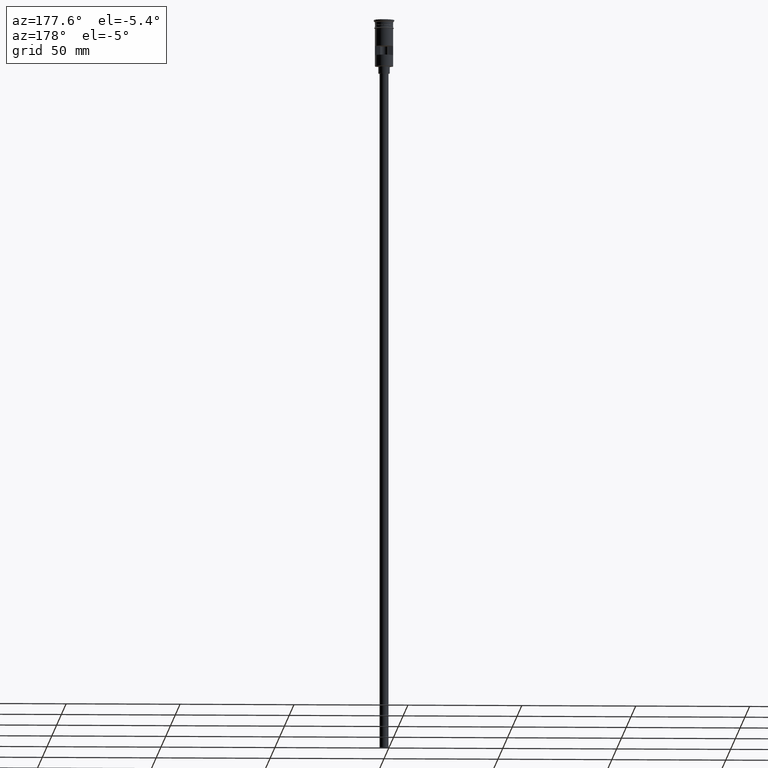
[diagram: clean part render]
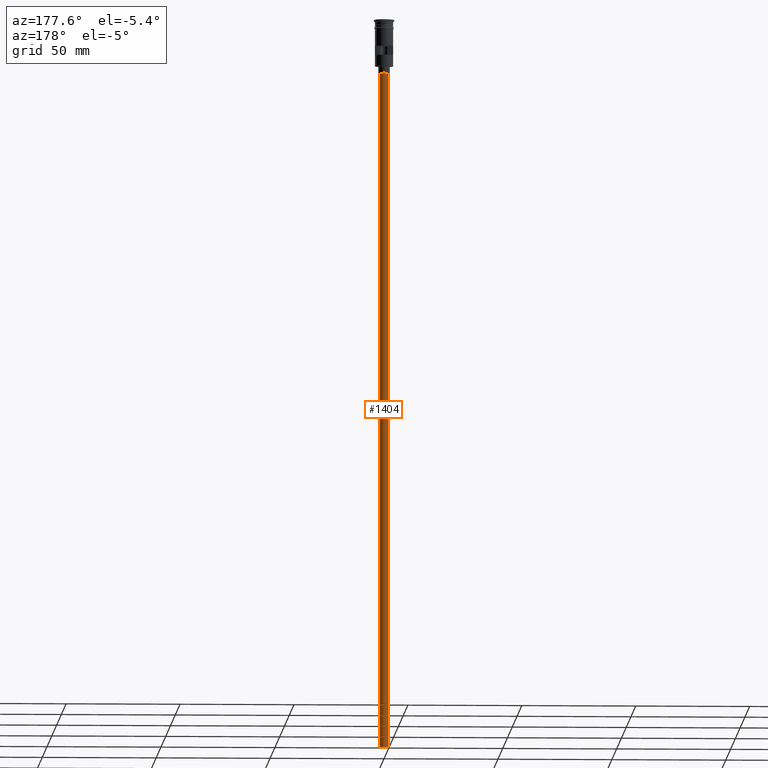
[diagram: same view with one face highlighted and labeled with its STEP entity id]
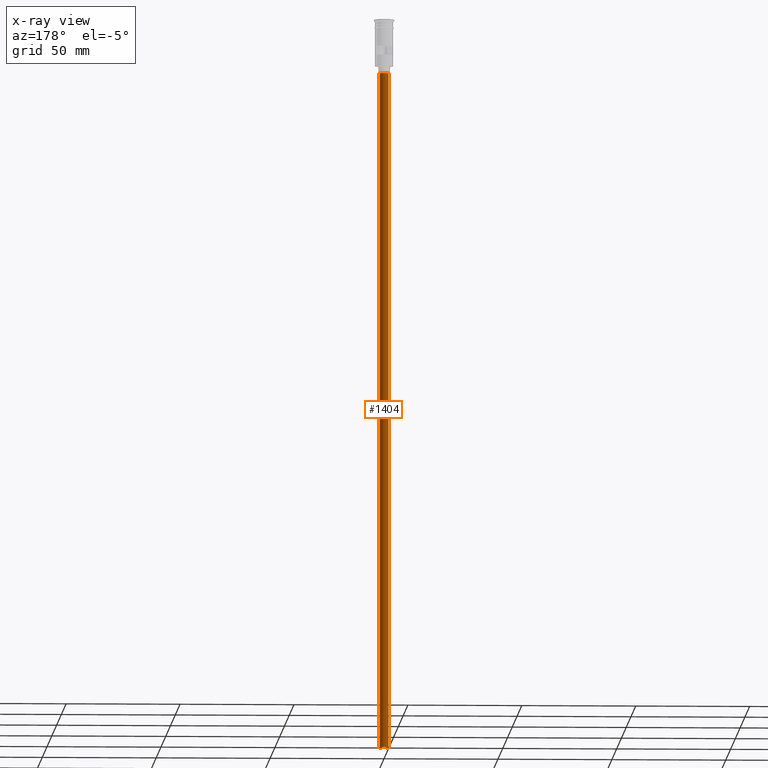
[diagram: x-ray of the same camera — body ghosted, the highlighted face saturated]
A machine part, auxiliary view. The second image highlights one B-rep face of the part: STEP entity #1404.
The next image is the same camera in x-ray: the body ghosted, the highlighted face saturated — about 0% of this face is hidden behind the body in this view.
In plain terms, the highlighted cylindrical surface (edge-blend (fillet) strip) has radius 2 mm, axis along (-0, -0, 1).
Its self-contained STEP definition (entity closure, byte-faithful):
#94 = FACE_OUTER_BOUND ( 'NONE', #513, .T. ) ;
#135 = AXIS2_PLACEMENT_3D ( 'NONE', #1141, #1472, #636 ) ;
#177 = CARTESIAN_POINT ( 'NONE',  ( -2.000000000000000000, 2.449293598294706414E-16, -320.5000000000000000 ) ) ;
#186 = VECTOR ( 'NONE', #811, 1000.000000000000000 ) ;
#320 = CARTESIAN_POINT ( 'NONE',  ( 2.000000000000000000, 0.000000000000000000, -23.49999999999999645 ) ) ;
#440 = LINE ( 'NONE', #177, #186 ) ;
#471 = CARTESIAN_POINT ( 'NONE',  ( 2.000000000000000000, 0.000000000000000000, -320.5000000000000000 ) ) ;
#486 = CARTESIAN_POINT ( 'NONE',  ( -2.000000000000000000, 2.449293598294706414E-16, -320.5000000000000000 ) ) ;
#495 = VERTEX_POINT ( 'NONE', #561 ) ;
#512 = AXIS2_PLACEMENT_3D ( 'NONE', #814, #680, #1170 ) ;
#513 = EDGE_LOOP ( 'NONE', ( #687, #523, #1560, #1193 ) ) ;
#519 = EDGE_CURVE ( 'NONE', #1144, #1357, #950, .T. ) ;
#523 = ORIENTED_EDGE ( 'NONE', *, *, #1510, .T. ) ;
#557 = VERTEX_POINT ( 'NONE', #486 ) ;
#561 = CARTESIAN_POINT ( 'NONE',  ( -2.000000000000000000, 2.449293598294706414E-16, -23.49999999999999645 ) ) ;
#603 = AXIS2_PLACEMENT_3D ( 'NONE', #1077, #1543, #1296 ) ;
#621 = DIRECTION ( 'NONE',  ( -0.000000000000000000, -0.000000000000000000, 1.000000000000000000 ) ) ;
#636 = DIRECTION ( 'NONE',  ( -1.000000000000000000, 0.000000000000000000, 0.000000000000000000 ) ) ;
#680 = DIRECTION ( 'NONE',  ( -0.000000000000000000, -0.000000000000000000, 1.000000000000000000 ) ) ;
#687 = ORIENTED_EDGE ( 'NONE', *, *, #856, .F. ) ;
#709 = CARTESIAN_POINT ( 'NONE',  ( 2.000000000000000000, 0.000000000000000000, -320.5000000000000000 ) ) ;
#758 = CIRCLE ( 'NONE', #603, 2.000000000000000000 ) ;
#805 = CYLINDRICAL_SURFACE ( 'NONE', #512, 2.000000000000000000 ) ;
#811 = DIRECTION ( 'NONE',  ( -0.000000000000000000, -0.000000000000000000, 1.000000000000000000 ) ) ;
#814 = CARTESIAN_POINT ( 'NONE',  ( 0.000000000000000000, 0.000000000000000000, -320.5000000000000000 ) ) ;
#856 = EDGE_CURVE ( 'NONE', #557, #1144, #1219, .T. ) ;
#950 = LINE ( 'NONE', #471, #1026 ) ;
#1026 = VECTOR ( 'NONE', #621, 1000.000000000000000 ) ;
#1077 = CARTESIAN_POINT ( 'NONE',  ( 0.000000000000000000, 0.000000000000000000, -23.49999999999999645 ) ) ;
#1141 = CARTESIAN_POINT ( 'NONE',  ( 0.000000000000000000, 0.000000000000000000, -320.5000000000000000 ) ) ;
#1144 = VERTEX_POINT ( 'NONE', #709 ) ;
#1170 = DIRECTION ( 'NONE',  ( 1.000000000000000000, 0.000000000000000000, 0.000000000000000000 ) ) ;
#1193 = ORIENTED_EDGE ( 'NONE', *, *, #519, .F. ) ;
#1219 = CIRCLE ( 'NONE', #135, 2.000000000000000000 ) ;
#1296 = DIRECTION ( 'NONE',  ( -1.000000000000000000, 0.000000000000000000, 0.000000000000000000 ) ) ;
#1357 = VERTEX_POINT ( 'NONE', #320 ) ;
#1404 = ADVANCED_FACE ( 'NONE', ( #94 ), #805, .T. ) ;
#1459 = EDGE_CURVE ( 'NONE', #495, #1357, #758, .T. ) ;
#1472 = DIRECTION ( 'NONE',  ( 0.000000000000000000, 0.000000000000000000, -1.000000000000000000 ) ) ;
#1510 = EDGE_CURVE ( 'NONE', #557, #495, #440, .T. ) ;
#1543 = DIRECTION ( 'NONE',  ( 0.000000000000000000, 0.000000000000000000, -1.000000000000000000 ) ) ;
#1560 = ORIENTED_EDGE ( 'NONE', *, *, #1459, .T. ) ;